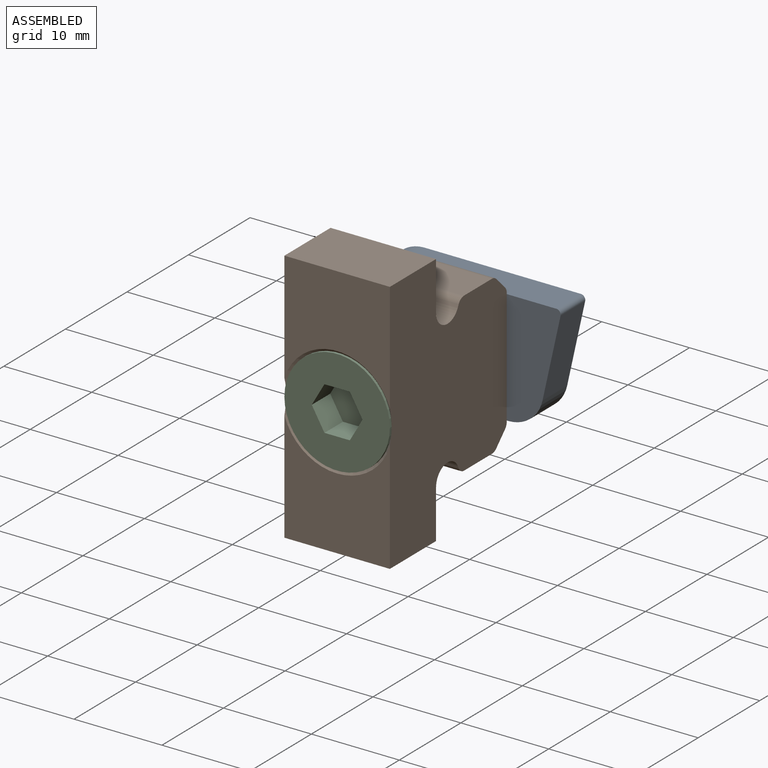
[diagram: assembled view]
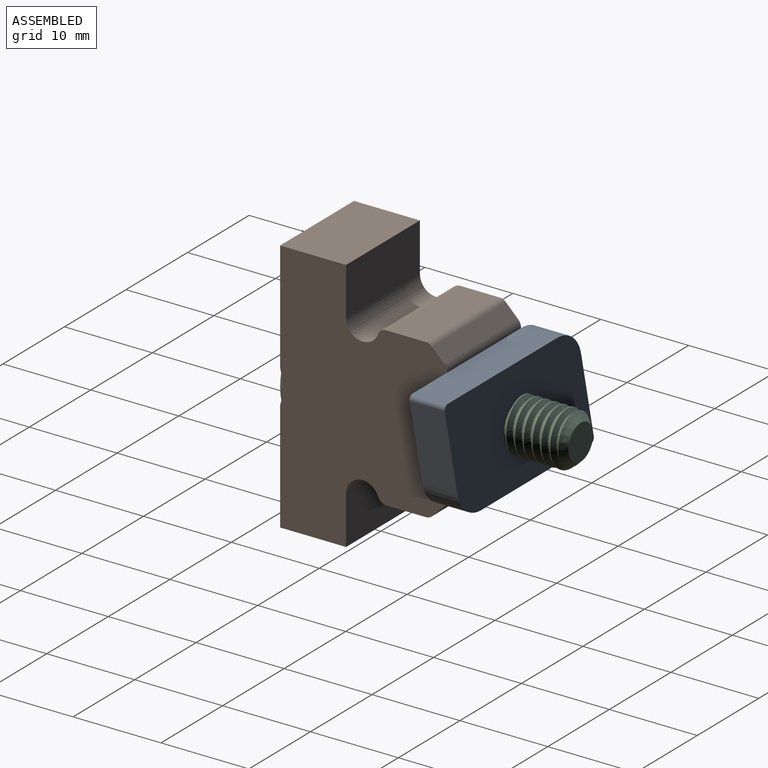
[diagram: assembled view, second angle]
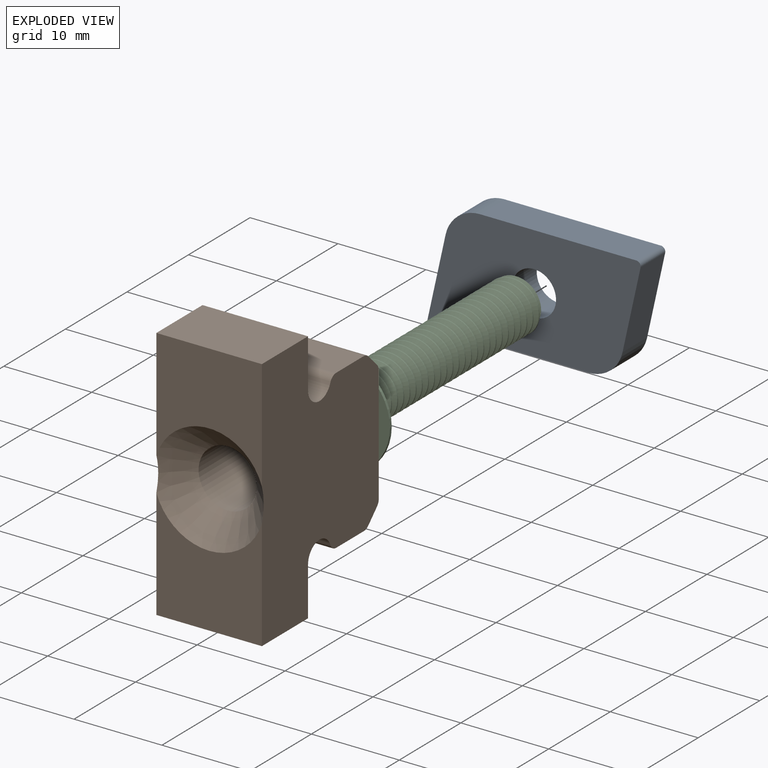
[diagram: exploded view]
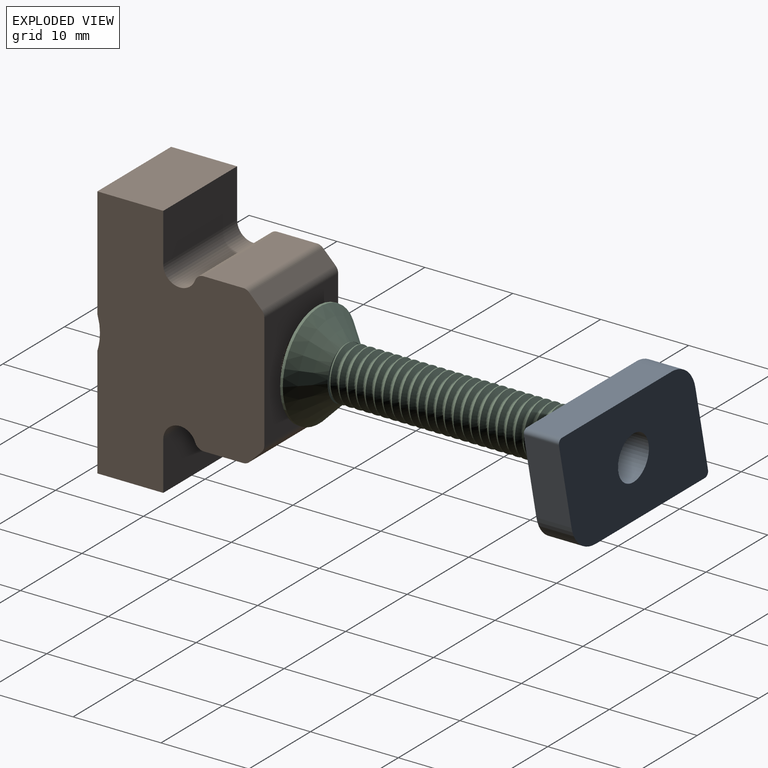
[diagram: exploded view, second angle]
ASSEMBLY  parts=3 mates=2
PART A: 11 faces, bbox 24.3x4x13 mm
  f0: plane 24.25x13mm, normal (0,1,0), area 257.2mm2, adj f1,f3,f4,f5,f6,f7,f8,f9
  f1: plane 9.26x4mm, normal (-0.98,0,0.22), area 37.9mm2, adj f0,f2,f7,f9
  f2: plane 24.25x13mm, normal (0,-1,0), area 257.2mm2, adj f1,f3,f4,f5,f6,f7,f8,f9
  f3: plane 17.78x4mm, normal (0,0,1), area 71.1mm2, adj f0,f2,f7,f10
  f4: plane 17.78x4mm, normal (0,0,-1), area 71.1mm2, adj f0,f2,f8,f9
  f5: plane 9.26x4mm, normal (0.98,0,-0.22), area 37.9mm2, adj f0,f2,f8,f10
  f6: cylinder r=2.5mm len=5mm, axis (0,-1,0), area 62.8mm2, adj f0,f2
  f7: cylinder r=4mm len=4mm, axis (0,-1,0), area 21.6mm2, adj f0,f1,f2,f3
  f8: cylinder r=4mm len=4mm, axis (0,1,0), area 21.6mm2, adj f0,f2,f4,f5
  f9: cylinder r=0.5mm len=4mm, axis (0,1,0), area 3.6mm2, adj f0,f1,f2,f4
  f10: cylinder r=0.5mm len=4mm, axis (0,-1,0), area 3.6mm2, adj f0,f2,f3,f5
PART B: 23 faces, bbox 12.6x19x29 mm
  f0: plane 12.58x12mm, normal (0,-1,0), area 112.4mm2, adj f1,f2,f4,f22
  f1: plane 29x19mm, normal (-1,0,0), area 408.4mm2, adj f0,f3,f4,f5,f6,f7,f8,f9
  f2: plane 29x19mm, normal (1,0,0), area 408.4mm2, adj f0,f3,f4,f5,f6,f7,f8,f9
  f3: plane 13.17x12mm, normal (0,1,0), area 123.8mm2, adj f1,f2,f17,f18,f21
  f4: plane 12x7.5mm, normal (0,0,-1), area 90mm2, adj f0,f1,f2,f7
  f5: plane 12x7.5mm, normal (0,0,1), area 90mm2, adj f1,f2,f6,f9
  f6: plane 12.58x12mm, normal (0,-1,0), area 112.4mm2, adj f1,f2,f5,f22
  f7: plane 12x5.5mm, normal (0,1,0), area 66mm2, adj f1,f2,f4,f11
  f8: plane 12x4.52mm, normal (0,0,-1), area 54.2mm2, adj f1,f2,f16,f19
  f9: plane 12x5.5mm, normal (0,1,0), area 66mm2, adj f1,f2,f5,f12
  f10: plane 12x4.52mm, normal (0,0,1), area 54.2mm2, adj f1,f2,f15,f20
  f11: cylinder r=1.88mm len=12mm, axis (1,0,0), area 62.7mm2, adj f1,f2,f7,f19
  f12: cylinder r=1.88mm len=12mm, axis (1,0,0), area 62.7mm2, adj f1,f2,f9,f20
  f13: plane 12x1.41mm, normal (0,0.71,-0.71), area 24mm2, adj f1,f2,f16,f17
  f14: plane 12x1.41mm, normal (0,0.71,0.71), area 24mm2, adj f1,f2,f15,f18
  f15: cylinder r=1mm len=12mm, axis (-1,0,0), area 9.4mm2, adj f1,f2,f10,f14
  f16: cylinder r=1mm len=12mm, axis (1,0,0), area 9.4mm2, adj f1,f2,f8,f13
  f17: cylinder r=1mm len=12mm, axis (1,0,0), area 9.4mm2, adj f1,f2,f3,f13
  f18: cylinder r=1mm len=12mm, axis (1,0,0), area 9.4mm2, adj f1,f2,f3,f14
  f19: cylinder r=1mm len=12mm, axis (1,0,0), area 14.6mm2, adj f1,f2,f8,f11
  f20: cylinder r=1mm len=12mm, axis (1,0,0), area 14.6mm2, adj f1,f2,f10,f12
  f21: cylinder r=3.3mm len=16mm, axis (0,-1,0), area 331.8mm2, adj f3,f22
  f22: cone r=3.3mm half-angle=45deg, axis (0,-1,0), area 125.8mm2, adj f0,f1,f2,f6,f21
PART C: 17 faces, bbox 30.3x12.3x12.3 mm
  f0: cone r=6mm half-angle=45deg, axis (1,0,0), area 120mm2, adj f1,f10,f15
  f1: cylinder r=6mm len=12mm, axis (1,0,0), area 11.3mm2, adj f0,f2
  f2: plane 12x12mm, normal (1,0,0), area 91.4mm2, adj f1,f3,f4,f5,f6,f7,f8
  f3: plane 3x2.5mm, normal (0,-0.5,0.87), area 8.7mm2, adj f2,f4,f8,f9
  f4: plane 3x2.89mm, normal (0,-1,0), area 8.7mm2, adj f2,f3,f5,f9
  f5: plane 3x2.5mm, normal (0,-0.5,-0.87), area 8.7mm2, adj f2,f4,f6,f9
  f6: plane 3x2.5mm, normal (0,0.5,-0.87), area 8.7mm2, adj f2,f5,f7,f9
  f7: plane 3x2.89mm, normal (0,1,0), area 8.7mm2, adj f2,f6,f8,f9
  f8: plane 3x2.5mm, normal (0,0.5,0.87), area 8.7mm2, adj f2,f3,f7,f9
  f9: plane 5.77x5mm, normal (1,0,0), area 21.7mm2, adj f3,f4,f5,f6,f7,f8
  f10: cylinder r=3mm len=25.7mm, axis (-1,0,0), area 130.4mm2, adj f0,f13,f14,f16
  f11: plane 4x4mm, normal (-1,0,0), area 12.6mm2, adj f16
  f12: bspline ~26.92x5.68mm, area 111.5mm2, adj f13,f14,f15,f16
  f13: bspline ~26.65x6.93mm, area 279mm2, adj f10,f12,f15,f16
  f14: bspline ~27.15x6.93mm, area 279.5mm2, adj f10,f12,f15,f16
  f15: plane 6.27x6.14mm, normal (-1,0,0), area 5.5mm2, adj f0,f12,f13,f14
  f16: cone r=3mm half-angle=45deg, axis (1,0,0), area 14.7mm2, adj f10,f11,f12,f13,f14
PLACE A rot(axis=(0,1,0),180deg) t=(0,1.75,0)mm
PLACE B at identity fixed
PLACE C rot(axis=(0.58,-0.58,-0.58),120deg) t=(0,-13.95,0)mm
MATE fastened B.f21 <-> C.f0  axis (0,-1,0) through (0,-17.25,0)mm
MATE fastened A.f6 <-> C.f0  axis (0,-1,0) through (0,1.75,0)mm
